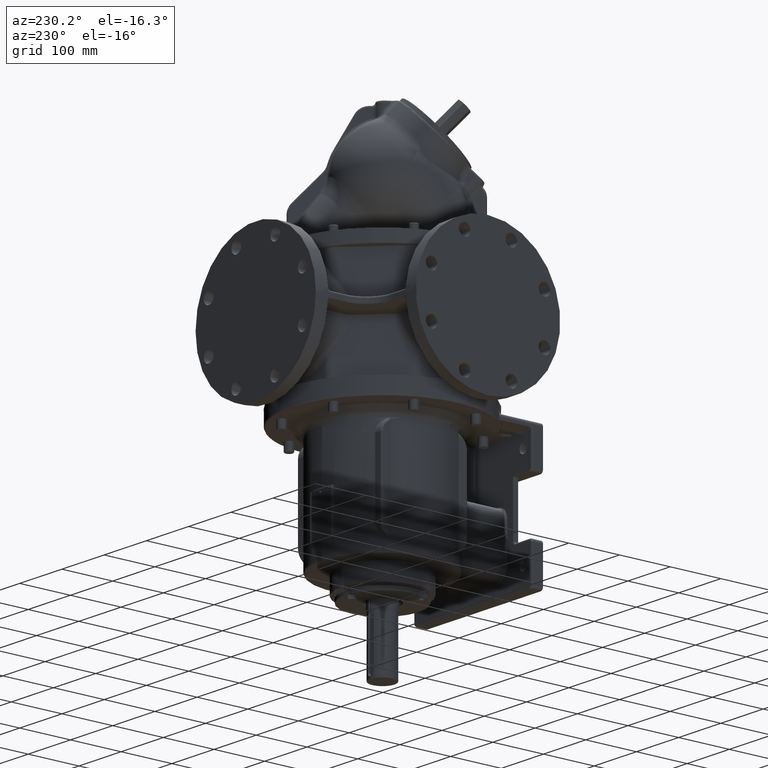
[diagram: clean part render]
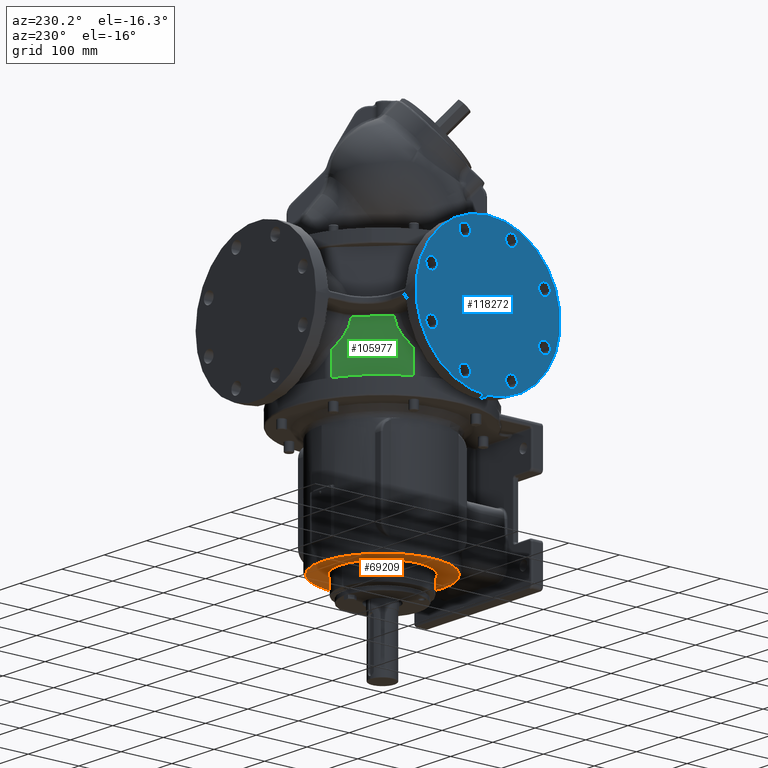
[diagram: same view with three faces highlighted in distinct colors, each labeled with its STEP entity id]
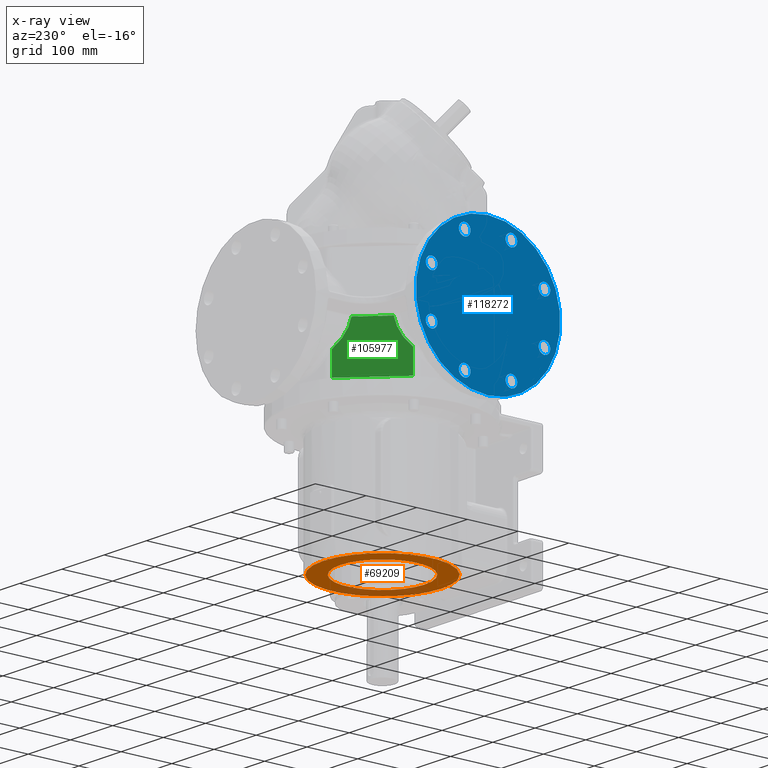
[diagram: x-ray of the same camera — body ghosted, the three highlighted faces saturated]
A machine part, auxiliary view with three faces highlighted in distinct colors.
The next image is the same camera in x-ray (body ghosted, the three faces saturated) — at least one of them is partly hidden behind the body in this view.
Their STEP definitions:

[orange] entity #69209 — the highlighted planar face has unit normal (0, 0, -1).
#10245=CARTESIAN_POINT('',(0.E0,1.E0,-2.52E2));
#10246=DIRECTION('',(0.E0,0.E0,-1.E0));
#10247=DIRECTION('',(0.E0,1.E0,0.E0));
#10248=AXIS2_PLACEMENT_3D('',#10245,#10246,#10247);
#10250=CARTESIAN_POINT('',(0.E0,1.E0,-2.52E2));
#10251=DIRECTION('',(0.E0,0.E0,1.E0));
#10252=DIRECTION('',(0.E0,1.E0,0.E0));
#10253=AXIS2_PLACEMENT_3D('',#10250,#10251,#10252);
#10255=CARTESIAN_POINT('',(0.E0,1.E0,-2.52E2));
#10256=DIRECTION('',(0.E0,0.E0,1.E0));
#10257=DIRECTION('',(0.E0,1.E0,0.E0));
#10258=AXIS2_PLACEMENT_3D('',#10255,#10256,#10257);
#10260=CARTESIAN_POINT('',(0.E0,1.E0,-2.52E2));
#10261=DIRECTION('',(0.E0,0.E0,1.E0));
#10262=DIRECTION('',(0.E0,-1.E0,0.E0));
#10263=AXIS2_PLACEMENT_3D('',#10260,#10261,#10262);
#41429=CARTESIAN_POINT('',(0.E0,1.18E2,-2.52E2));
#41431=VERTEX_POINT('',#41429);
#41433=CARTESIAN_POINT('',(3.763008000243E-14,-1.16E2,-2.52E2));
#41435=VERTEX_POINT('',#41433);
#41833=CARTESIAN_POINT('',(0.E0,8.4E1,-2.52E2));
#41834=CARTESIAN_POINT('',(-1.016455843292E-14,-8.2E1,-2.52E2));
#41835=VERTEX_POINT('',#41833);
#41836=VERTEX_POINT('',#41834);
#69194=CARTESIAN_POINT('',(0.E0,1.E0,-2.52E2));
#69195=DIRECTION('',(0.E0,0.E0,-1.E0));
#69196=DIRECTION('',(0.E0,1.E0,0.E0));
#69197=AXIS2_PLACEMENT_3D('',#69194,#69195,#69196);
#69198=PLANE('',#69197);
#69199=ORIENTED_EDGE('',*,*,#69187,.F.);
#69200=ORIENTED_EDGE('',*,*,#69176,.T.);
#69201=EDGE_LOOP('',(#69199,#69200));
#69202=FACE_OUTER_BOUND('',#69201,.F.);
#69204=ORIENTED_EDGE('',*,*,#69203,.F.);
#69206=ORIENTED_EDGE('',*,*,#69205,.F.);
#69207=EDGE_LOOP('',(#69204,#69206));
#69208=FACE_BOUND('',#69207,.F.);
#69209=ADVANCED_FACE('',(#69202,#69208),#69198,.T.);
#10249=CIRCLE('',#10248,1.17E2);
#10254=CIRCLE('',#10253,1.17E2);
#10259=CIRCLE('',#10258,8.3E1);
#10264=CIRCLE('',#10263,8.3E1);
#69176=EDGE_CURVE('',#41431,#41435,#10254,.T.);
#69187=EDGE_CURVE('',#41431,#41435,#10249,.T.);
#69203=EDGE_CURVE('',#41835,#41836,#10259,.T.);
#69205=EDGE_CURVE('',#41836,#41835,#10264,.T.);

[blue] entity #118272 — the highlighted planar face has unit normal (-1, 0, 0).
#20059=CARTESIAN_POINT('',(-2.5E2,1.E0,1.175E2));
#20060=DIRECTION('',(-1.E0,0.E0,0.E0));
#20061=DIRECTION('',(0.E0,0.E0,1.E0));
#20062=AXIS2_PLACEMENT_3D('',#20059,#20060,#20061);
#20277=CARTESIAN_POINT('',(-2.5E2,-4.511335359999E1,6.172516332390E0));
#20278=DIRECTION('',(-1.E0,0.E0,0.E0));
#20279=DIRECTION('',(0.E0,1.E0,0.E0));
#20280=AXIS2_PLACEMENT_3D('',#20277,#20278,#20279);
#20282=CARTESIAN_POINT('',(-2.5E2,-4.511335359999E1,6.172516332390E0));
#20283=DIRECTION('',(-1.E0,0.E0,0.E0));
#20284=DIRECTION('',(0.E0,-1.E0,0.E0));
#20285=AXIS2_PLACEMENT_3D('',#20282,#20283,#20284);
#20287=CARTESIAN_POINT('',(-2.5E2,-1.103274836676E2,7.138664640001E1));
#20288=DIRECTION('',(-1.E0,0.E0,0.E0));
#20289=DIRECTION('',(0.E0,7.071067811866E-1,-7.071067811865E-1));
#20290=AXIS2_PLACEMENT_3D('',#20287,#20288,#20289);
#20292=CARTESIAN_POINT('',(-2.5E2,-1.103274836676E2,7.138664640001E1));
#20293=DIRECTION('',(-1.E0,0.E0,0.E0));
#20294=DIRECTION('',(0.E0,-7.071067811865E-1,7.071067811865E-1));
#20295=AXIS2_PLACEMENT_3D('',#20292,#20293,#20294);
#20297=CARTESIAN_POINT('',(-2.5E2,-1.103274836676E2,1.636133536E2));
#20298=DIRECTION('',(-1.E0,0.E0,0.E0));
#20299=DIRECTION('',(0.E0,0.E0,-1.E0));
#20300=AXIS2_PLACEMENT_3D('',#20297,#20298,#20299);
#20302=CARTESIAN_POINT('',(-2.5E2,-1.103274836676E2,1.636133536E2));
#20303=DIRECTION('',(-1.E0,0.E0,0.E0));
#20304=DIRECTION('',(0.E0,0.E0,1.E0));
#20305=AXIS2_PLACEMENT_3D('',#20302,#20303,#20304);
#20307=CARTESIAN_POINT('',(-2.5E2,-4.511335359999E1,2.288274836676E2));
#20308=DIRECTION('',(-1.E0,0.E0,0.E0));
#20309=DIRECTION('',(0.E0,-7.071067811865E-1,-7.071067811866E-1));
#20310=AXIS2_PLACEMENT_3D('',#20307,#20308,#20309);
#20312=CARTESIAN_POINT('',(-2.5E2,-4.511335359999E1,2.288274836676E2));
#20313=DIRECTION('',(-1.E0,0.E0,0.E0));
#20314=DIRECTION('',(0.E0,7.071067811865E-1,7.071067811865E-1));
#20315=AXIS2_PLACEMENT_3D('',#20312,#20313,#20314);
#20317=CARTESIAN_POINT('',(-2.5E2,4.711335359999E1,2.288274836676E2));
#20318=DIRECTION('',(-1.E0,0.E0,0.E0));
#20319=DIRECTION('',(0.E0,-1.E0,0.E0));
#20320=AXIS2_PLACEMENT_3D('',#20317,#20318,#20319);
#20322=CARTESIAN_POINT('',(-2.5E2,4.711335359999E1,2.288274836676E2));
#20323=DIRECTION('',(-1.E0,0.E0,0.E0));
#20324=DIRECTION('',(0.E0,1.E0,0.E0));
#20325=AXIS2_PLACEMENT_3D('',#20322,#20323,#20324);
#20327=CARTESIAN_POINT('',(-2.5E2,1.123274836676E2,1.636133536E2));
#20328=DIRECTION('',(-1.E0,0.E0,0.E0));
#20329=DIRECTION('',(0.E0,-7.071067811866E-1,7.071067811865E-1));
#20330=AXIS2_PLACEMENT_3D('',#20327,#20328,#20329);
#20332=CARTESIAN_POINT('',(-2.5E2,1.123274836676E2,1.636133536E2));
#20333=DIRECTION('',(-1.E0,0.E0,0.E0));
#20334=DIRECTION('',(0.E0,7.071067811865E-1,-7.071067811865E-1));
#20335=AXIS2_PLACEMENT_3D('',#20332,#20333,#20334);
#20337=CARTESIAN_POINT('',(-2.5E2,1.123274836676E2,7.138664640001E1));
#20338=DIRECTION('',(-1.E0,0.E0,0.E0));
#20339=DIRECTION('',(0.E0,0.E0,1.E0));
#20340=AXIS2_PLACEMENT_3D('',#20337,#20338,#20339);
#20342=CARTESIAN_POINT('',(-2.5E2,1.123274836676E2,7.138664640001E1));
#20343=DIRECTION('',(-1.E0,0.E0,0.E0));
#20344=DIRECTION('',(0.E0,0.E0,-1.E0));
#20345=AXIS2_PLACEMENT_3D('',#20342,#20343,#20344);
#20347=CARTESIAN_POINT('',(-2.5E2,4.711335359999E1,6.172516332390E0));
#20348=DIRECTION('',(-1.E0,0.E0,0.E0));
#20349=DIRECTION('',(0.E0,7.071067811866E-1,7.071067811865E-1));
#20350=AXIS2_PLACEMENT_3D('',#20347,#20348,#20349);
#20352=CARTESIAN_POINT('',(-2.5E2,4.711335359999E1,6.172516332390E0));
#20353=DIRECTION('',(-1.E0,0.E0,0.E0));
#20354=DIRECTION('',(0.E0,-7.071067811865E-1,-7.071067811865E-1));
#20355=AXIS2_PLACEMENT_3D('',#20352,#20353,#20354);
#20357=CARTESIAN_POINT('',(-2.5E2,1.E0,1.175E2));
#20358=DIRECTION('',(-1.E0,0.E0,0.E0));
#20359=DIRECTION('',(0.E0,0.E0,-1.E0));
#20360=AXIS2_PLACEMENT_3D('',#20357,#20358,#20359);
#42069=CARTESIAN_POINT('',(-2.5E2,1.E0,-2.5E1));
#42070=CARTESIAN_POINT('',(-2.5E2,9.999999999998E-1,2.6E2));
#42071=VERTEX_POINT('',#42069);
#42072=VERTEX_POINT('',#42070);
#42077=CARTESIAN_POINT('',(-2.5E2,-3.361335359999E1,6.172516332390E0));
#42078=CARTESIAN_POINT('',(-2.5E2,-5.661335359999E1,6.172516332390E0));
#42079=VERTEX_POINT('',#42077);
#42080=VERTEX_POINT('',#42078);
#42081=CARTESIAN_POINT('',(-2.5E2,-1.021957556840E2,6.325491841636E1));
#42082=CARTESIAN_POINT('',(-2.5E2,-1.184592116513E2,7.951837438365E1));
#42083=VERTEX_POINT('',#42081);
#42084=VERTEX_POINT('',#42082);
#42085=CARTESIAN_POINT('',(-2.5E2,-1.103274836676E2,1.521133536E2));
#42086=CARTESIAN_POINT('',(-2.5E2,-1.103274836676E2,1.751133536E2));
#42087=VERTEX_POINT('',#42085);
#42088=VERTEX_POINT('',#42086);
#42089=CARTESIAN_POINT('',(-2.5E2,-5.324508158364E1,2.206957556840E2));
#42090=CARTESIAN_POINT('',(-2.5E2,-3.698162561635E1,2.369592116513E2));
#42091=VERTEX_POINT('',#42089);
#42092=VERTEX_POINT('',#42090);
#42332=CARTESIAN_POINT('',(-2.5E2,3.561335359999E1,2.288274836676E2));
#42333=CARTESIAN_POINT('',(-2.5E2,5.861335359999E1,2.288274836676E2));
#42334=VERTEX_POINT('',#42332);
#42335=VERTEX_POINT('',#42333);
#42340=CARTESIAN_POINT('',(-2.5E2,1.041957556840E2,1.717450815836E2));
#42341=CARTESIAN_POINT('',(-2.5E2,1.204592116513E2,1.554816256163E2));
#42342=VERTEX_POINT('',#42340);
#42343=VERTEX_POINT('',#42341);
#42348=CARTESIAN_POINT('',(-2.5E2,1.123274836676E2,8.288664640001E1));
#42349=CARTESIAN_POINT('',(-2.5E2,1.123274836676E2,5.988664640001E1));
#42350=VERTEX_POINT('',#42348);
#42351=VERTEX_POINT('',#42349);
#42356=CARTESIAN_POINT('',(-2.5E2,5.524508158364E1,1.430424431604E1));
#42357=CARTESIAN_POINT('',(-2.5E2,3.898162561635E1,-1.959211651255E0));
#42358=VERTEX_POINT('',#42356);
#42359=VERTEX_POINT('',#42357);
#118214=CARTESIAN_POINT('',(-2.5E2,1.E0,1.175E2));
#118215=DIRECTION('',(-1.E0,0.E0,0.E0));
#118216=DIRECTION('',(0.E0,1.E0,0.E0));
#118217=AXIS2_PLACEMENT_3D('',#118214,#118215,#118216);
#118218=PLANE('',#118217);
#118220=ORIENTED_EDGE('',*,*,#118219,.F.);
#118221=ORIENTED_EDGE('',*,*,#118190,.F.);
#118222=EDGE_LOOP('',(#118220,#118221));
#118223=FACE_OUTER_BOUND('',#118222,.F.);
#118225=ORIENTED_EDGE('',*,*,#118224,.T.);
#118227=ORIENTED_EDGE('',*,*,#118226,.T.);
#118228=EDGE_LOOP('',(#118225,#118227));
#118229=FACE_BOUND('',#118228,.F.);
#118231=ORIENTED_EDGE('',*,*,#118230,.T.);
#118233=ORIENTED_EDGE('',*,*,#118232,.T.);
#118234=EDGE_LOOP('',(#118231,#118233));
#118235=FACE_BOUND('',#118234,.F.);
#118237=ORIENTED_EDGE('',*,*,#118236,.T.);
#118239=ORIENTED_EDGE('',*,*,#118238,.T.);
#118240=EDGE_LOOP('',(#118237,#118239));
#118241=FACE_BOUND('',#118240,.F.);
#118243=ORIENTED_EDGE('',*,*,#118242,.T.);
#118245=ORIENTED_EDGE('',*,*,#118244,.T.);
#118246=EDGE_LOOP('',(#118243,#118245));
#118247=FACE_BOUND('',#118246,.F.);
#118249=ORIENTED_EDGE('',*,*,#118248,.T.);
#118251=ORIENTED_EDGE('',*,*,#118250,.T.);
#118252=EDGE_LOOP('',(#118249,#118251));
#118253=FACE_BOUND('',#118252,.F.);
#118255=ORIENTED_EDGE('',*,*,#118254,.T.);
#118257=ORIENTED_EDGE('',*,*,#118256,.T.);
#118258=EDGE_LOOP('',(#118255,#118257));
#118259=FACE_BOUND('',#118258,.F.);
#118261=ORIENTED_EDGE('',*,*,#118260,.T.);
#118263=ORIENTED_EDGE('',*,*,#118262,.T.);
#118264=EDGE_LOOP('',(#118261,#118263));
#118265=FACE_BOUND('',#118264,.F.);
#118267=ORIENTED_EDGE('',*,*,#118266,.T.);
#118269=ORIENTED_EDGE('',*,*,#118268,.T.);
#118270=EDGE_LOOP('',(#118267,#118269));
#118271=FACE_BOUND('',#118270,.F.);
#118272=ADVANCED_FACE('',(#118223,#118229,#118235,#118241,#118247,#118253,
#118259,#118265,#118271),#118218,.T.);
#20063=CIRCLE('',#20062,1.425E2);
#20281=CIRCLE('',#20280,1.15E1);
#20286=CIRCLE('',#20285,1.15E1);
#20291=CIRCLE('',#20290,1.15E1);
#20296=CIRCLE('',#20295,1.15E1);
#20301=CIRCLE('',#20300,1.15E1);
#20306=CIRCLE('',#20305,1.15E1);
#20311=CIRCLE('',#20310,1.15E1);
#20316=CIRCLE('',#20315,1.15E1);
#20321=CIRCLE('',#20320,1.15E1);
#20326=CIRCLE('',#20325,1.15E1);
#20331=CIRCLE('',#20330,1.15E1);
#20336=CIRCLE('',#20335,1.15E1);
#20341=CIRCLE('',#20340,1.15E1);
#20346=CIRCLE('',#20345,1.15E1);
#20351=CIRCLE('',#20350,1.15E1);
#20356=CIRCLE('',#20355,1.15E1);
#20361=CIRCLE('',#20360,1.425E2);
#118190=EDGE_CURVE('',#42072,#42071,#20063,.T.);
#118219=EDGE_CURVE('',#42071,#42072,#20361,.T.);
#118224=EDGE_CURVE('',#42079,#42080,#20281,.T.);
#118226=EDGE_CURVE('',#42080,#42079,#20286,.T.);
#118230=EDGE_CURVE('',#42083,#42084,#20291,.T.);
#118232=EDGE_CURVE('',#42084,#42083,#20296,.T.);
#118236=EDGE_CURVE('',#42087,#42088,#20301,.T.);
#118238=EDGE_CURVE('',#42088,#42087,#20306,.T.);
#118242=EDGE_CURVE('',#42091,#42092,#20311,.T.);
#118244=EDGE_CURVE('',#42092,#42091,#20316,.T.);
#118248=EDGE_CURVE('',#42334,#42335,#20321,.T.);
#118250=EDGE_CURVE('',#42335,#42334,#20326,.T.);
#118254=EDGE_CURVE('',#42342,#42343,#20331,.T.);
#118256=EDGE_CURVE('',#42343,#42342,#20336,.T.);
#118260=EDGE_CURVE('',#42350,#42351,#20341,.T.);
#118262=EDGE_CURVE('',#42351,#42350,#20346,.T.);
#118266=EDGE_CURVE('',#42358,#42359,#20351,.T.);
#118268=EDGE_CURVE('',#42359,#42358,#20356,.T.);

[green] entity #105977 — the highlighted planar face has unit normal (-0.7071, 0.7071, 0).
#18035=CARTESIAN_POINT('',(-1.603137084990E2,7.403152929258E1,
5.830536810069E1));
#18070=CARTESIAN_POINT('',(-1.394130866161E2,9.493215117490E1,
1.084999999836E2));
#18110=DIRECTION('',(-7.071067811865E-1,-7.071067811865E-1,0.E0));
#18111=VECTOR('',#18110,6.431975573031E1);
#18112=CARTESIAN_POINT('',(-9.393215117490E1,1.404130866161E2,
1.084999999836E2));
#18113=LINE('',#18112,#18111);
#18114=CARTESIAN_POINT('',(-1.394130866161E2,9.493215117490E1,
1.084999999836E2));
#18115=CARTESIAN_POINT('',(-1.394706443185E2,9.487459347641E1,
1.080040716554E2));
#18116=CARTESIAN_POINT('',(-1.395932243751E2,9.475201341493E1,
1.070126960584E2));
#18117=CARTESIAN_POINT('',(-1.397995885254E2,9.454564926655E1,
1.055270858532E2));
#18118=CARTESIAN_POINT('',(-1.400285551612E2,9.431668263022E1,
1.040429935544E2));
#18119=CARTESIAN_POINT('',(-1.402802620863E2,9.406497570526E1,
1.025603988390E2));
#18120=CARTESIAN_POINT('',(-1.405548550863E2,9.379038270529E1,
1.010793422154E2));
#18121=CARTESIAN_POINT('',(-1.408525116765E2,9.349272611502E1,
9.959979052187E1));
#18122=CARTESIAN_POINT('',(-1.411734198631E2,9.317181792848E1,
9.812175732255E1));
#18123=CARTESIAN_POINT('',(-1.415177983144E2,9.282743947717E1,
9.664520700896E1));
#18124=CARTESIAN_POINT('',(-1.418858902173E2,9.245934757424E1,
9.517009368939E1));
#18125=CARTESIAN_POINT('',(-1.422779510842E2,9.206728670733E1,
9.369641283483E1));
#18126=CARTESIAN_POINT('',(-1.426942754254E2,9.165096236615E1,
9.222410020712E1));
#18127=CARTESIAN_POINT('',(-1.431351615063E2,9.121007628523E1,
9.075316358346E1));
#18128=CARTESIAN_POINT('',(-1.436009984052E2,9.074423938631E1,
8.928339723527E1));
#18129=CARTESIAN_POINT('',(-1.440921519569E2,9.025308583469E1,
8.781477070894E1));
#18130=CARTESIAN_POINT('',(-1.446090391523E2,8.973619863922E1,
8.634718387881E1));
#18131=CARTESIAN_POINT('',(-1.451520957660E2,8.919314202555E1,
8.488057261133E1));
#18132=CARTESIAN_POINT('',(-1.457218423835E2,8.862339540808E1,
8.341473510560E1));
#18133=CARTESIAN_POINT('',(-1.463187967153E2,8.802644107622E1,
8.194957682028E1));
#18134=CARTESIAN_POINT('',(-1.469435684564E2,8.740166933514E1,
8.048487068449E1));
#18135=CARTESIAN_POINT('',(-1.475967805327E2,8.674845725886E1,
7.902046365068E1));
#18136=CARTESIAN_POINT('',(-1.482791597954E2,8.606607799620E1,
7.755607029291E1));
#18137=CARTESIAN_POINT('',(-1.489914602101E2,8.535377758144E1,
7.609146136753E1));
#18138=CARTESIAN_POINT('',(-1.497345465996E2,8.461069119196E1,
7.462628951907E1));
#18139=CARTESIAN_POINT('',(-1.505093456480E2,8.383589214360E1,
7.316021116336E1));
#18140=CARTESIAN_POINT('',(-1.513169084301E2,8.302832936148E1,
7.169277215292E1));
#18141=CARTESIAN_POINT('',(-1.521583728907E2,8.218686490084E1,
7.022350251554E1));
#18142=CARTESIAN_POINT('',(-1.530349929227E2,8.131024486884E1,
6.875186933294E1));
#18143=CARTESIAN_POINT('',(-1.539482494282E2,8.039698836332E1,
6.727711965079E1));
#18144=CARTESIAN_POINT('',(-1.548997644393E2,7.944547335225E1,
6.579844953676E1));
#18145=CARTESIAN_POINT('',(-1.558913357240E2,7.845390206757E1,
6.431497122245E1));
#18146=CARTESIAN_POINT('',(-1.569250317093E2,7.742020608233E1,
6.282559084964E1));
#18147=CARTESIAN_POINT('',(-1.580033068163E2,7.634193097517E1,
6.132890561877E1));
#18148=CARTESIAN_POINT('',(-1.591286287775E2,7.521660901452E1,
5.982370812174E1));
#18149=CARTESIAN_POINT('',(-1.599130170010E2,7.443222078961E1,
5.881246306592E1));
#18150=CARTESIAN_POINT('',(-1.603137084990E2,7.403152929258E1,
5.830536810069E1));
#18152=DIRECTION('',(0.E0,0.E0,1.E0));
#18153=VECTOR('',#18152,4.580536810069E1);
#18154=CARTESIAN_POINT('',(-1.603137084990E2,7.403152929258E1,1.25E1));
#18155=LINE('',#18154,#18153);
#18156=DIRECTION('',(7.071067811865E-1,7.071067811865E-1,0.E0));
#18157=VECTOR('',#18156,1.234356415872E2);
#18158=CARTESIAN_POINT('',(-1.603137084990E2,7.403152929258E1,1.25E1));
#18159=LINE('',#18158,#18157);
#18160=DIRECTION('',(7.769137953037E-12,7.770378930268E-12,1.E0));
#18161=VECTOR('',#18160,4.580536810252E1);
#18162=CARTESIAN_POINT('',(-7.303152929258E1,1.613137084990E2,1.25E1));
#18163=LINE('',#18162,#18161);
#18164=CARTESIAN_POINT('',(-9.393215117490E1,1.404130866161E2,
1.084999999836E2));
#18165=CARTESIAN_POINT('',(-9.387461174659E1,1.404706260483E2,
1.080042290749E2));
#18166=CARTESIAN_POINT('',(-9.375206393862E1,1.405931738514E2,
1.070130830997E2));
#18167=CARTESIAN_POINT('',(-9.354568995374E1,1.407995478382E2,
1.055273608618E2));
#18168=CARTESIAN_POINT('',(-9.331673456756E1,1.410285032239E2,
1.040433156827E2));
#18169=CARTESIAN_POINT('',(-9.306502994844E1,1.412802078432E2,
1.025607034566E2));
#18170=CARTESIAN_POINT('',(-9.279044049477E1,1.415547972968E2,
1.010796413130E2));
#18171=CARTESIAN_POINT('',(-9.249278823399E1,1.418524495576E2,
9.960008746984E1));
#18172=CARTESIAN_POINT('',(-9.217188352781E1,1.421733542637E2,
9.812204846784E1));
#18173=CARTESIAN_POINT('',(-9.182750773282E1,1.425177300587E2,
9.664548981928E1));
#18174=CARTESIAN_POINT('',(-9.145942069726E1,1.428858170943E2,
9.517037711521E1));
#18175=CARTESIAN_POINT('',(-9.106735964955E1,1.432778781420E2,
9.369667870682E1));
#18176=CARTESIAN_POINT('',(-9.065104284334E1,1.436941949482E2,
9.222437635881E1));
#18177=CARTESIAN_POINT('',(-9.021015266061E1,1.441350851310E2,
9.075341107783E1));
#18178=CARTESIAN_POINT('',(-8.974432201944E1,1.446009157721E2,
8.928365092559E1));
#18179=CARTESIAN_POINT('',(-8.925316674052E1,1.450920710510E2,
8.781500626821E1));
#18180=CARTESIAN_POINT('',(-8.873628456657E1,1.456089532250E2,
8.634742158672E1));
#18181=CARTESIAN_POINT('',(-8.819322330767E1,1.461520144839E2,
8.488078668011E1));
#18182=CARTESIAN_POINT('',(-8.762348190700E1,1.467217558846E2,
8.341495227923E1));
#18183=CARTESIAN_POINT('',(-8.702652168967E1,1.473187161019E2,
8.194976998973E1));
#18184=CARTESIAN_POINT('',(-8.640175387305E1,1.479434839185E2,
8.048506429418E1));
#18185=CARTESIAN_POINT('',(-8.574853412135E1,1.485967036702E2,
7.902063201396E1));
#18186=CARTESIAN_POINT('',(-8.506615690406E1,1.492790808875E2,
7.755623585390E1));
#18187=CARTESIAN_POINT('',(-8.435384760587E1,1.499913901857E2,
7.609160210908E1));
#18188=CARTESIAN_POINT('',(-8.361076027517E1,1.507344775164E2,
7.462642276208E1));
#18189=CARTESIAN_POINT('',(-8.283595101474E1,1.515092867768E2,
7.316032000416E1));
#18190=CARTESIAN_POINT('',(-8.202838176152E1,1.523168560300E2,
7.169286532515E1));
#18191=CARTESIAN_POINT('',(-8.118690957121E1,1.531583282204E2,
7.022357865215E1));
#18192=CARTESIAN_POINT('',(-8.031027371344E1,1.540349640781E2,
6.875191653883E1));
#18193=CARTESIAN_POINT('',(-7.939700774033E1,1.549482300512E2,
6.727715005032E1));
#18194=CARTESIAN_POINT('',(-7.844547409030E1,1.558997637013E2,
6.579845034276E1));
#18195=CARTESIAN_POINT('',(-7.745388503057E1,1.568913527610E2,
6.431494566671E1));
#18196=CARTESIAN_POINT('',(-7.642016113675E1,1.579250766548E2,
6.282552734188E1));
#18197=CARTESIAN_POINT('',(-7.534188251240E1,1.590033552790E2,
6.132883840679E1));
#18198=CARTESIAN_POINT('',(-7.421646077745E1,1.601287770145E2,
5.982351323787E1));
#18199=CARTESIAN_POINT('',(-7.343215701991E1,1.609130807707E2,
5.881238236447E1));
#18200=CARTESIAN_POINT('',(-7.303152929222E1,1.613137084993E2,
5.830536810252E1));
#18202=CARTESIAN_POINT('',(-7.303152929222E1,1.613137084993E2,
5.830536810252E1));
#42160=CARTESIAN_POINT('',(-7.303152929258E1,1.613137084990E2,1.25E1));
#42162=VERTEX_POINT('',#42160);
#42190=CARTESIAN_POINT('',(-1.603137084990E2,7.403152929258E1,1.25E1));
#42191=VERTEX_POINT('',#42190);
#42256=VERTEX_POINT('',#18035);
#42324=VERTEX_POINT('',#18202);
#42437=VERTEX_POINT('',#18070);
#42439=CARTESIAN_POINT('',(-9.393215117490E1,1.404130866161E2,
1.084999999836E2));
#42440=VERTEX_POINT('',#42439);
#105962=CARTESIAN_POINT('',(-1.65E2,6.934523779156E1,2.255E2));
#105963=DIRECTION('',(-7.071067811865E-1,7.071067811865E-1,0.E0));
#105964=DIRECTION('',(7.071067811865E-1,7.071067811865E-1,0.E0));
#105965=AXIS2_PLACEMENT_3D('',#105962,#105963,#105964);
#105966=PLANE('',#105965);
#105967=ORIENTED_EDGE('',*,*,#105952,.T.);
#105968=ORIENTED_EDGE('',*,*,#105815,.T.);
#105969=ORIENTED_EDGE('',*,*,#104993,.F.);
#105970=ORIENTED_EDGE('',*,*,#76111,.T.);
#105972=ORIENTED_EDGE('',*,*,#105971,.T.);
#105974=ORIENTED_EDGE('',*,*,#105973,.F.);
#105975=EDGE_LOOP('',(#105967,#105968,#105969,#105970,#105972,#105974));
#105976=FACE_OUTER_BOUND('',#105975,.F.);
#105977=ADVANCED_FACE('',(#105976),#105966,.T.);
#18151=B_SPLINE_CURVE_WITH_KNOTS('',3,(#18114,#18115,#18116,#18117,#18118,
#18119,#18120,#18121,#18122,#18123,#18124,#18125,#18126,#18127,#18128,#18129,
#18130,#18131,#18132,#18133,#18134,#18135,#18136,#18137,#18138,#18139,#18140,
#18141,#18142,#18143,#18144,#18145,#18146,#18147,#18148,#18149,#18150),
.UNSPECIFIED.,.F.,.F.,(4,1,1,1,1,1,1,1,1,1,1,1,1,1,1,1,1,1,1,1,1,1,1,1,1,1,1,1,
1,1,1,1,1,1,4),(0.E0,2.941176470588E-2,5.882352941176E-2,8.823529411765E-2,
1.176470588235E-1,1.470588235294E-1,1.764705882353E-1,2.058823529412E-1,
2.352941176471E-1,2.647058823529E-1,2.941176470588E-1,3.235294117647E-1,
3.529411764706E-1,3.823529411765E-1,4.117647058824E-1,4.411764705882E-1,
4.705882352941E-1,5.E-1,5.294117647059E-1,5.588235294118E-1,5.882352941176E-1,
6.176470588235E-1,6.470588235294E-1,6.764705882353E-1,7.058823529412E-1,
7.352941176471E-1,7.647058823529E-1,7.941176470588E-1,8.235294117647E-1,
8.529411764706E-1,8.823529411765E-1,9.117647058824E-1,9.411764705882E-1,
9.705882352941E-1,1.E0),.UNSPECIFIED.);
#18201=B_SPLINE_CURVE_WITH_KNOTS('',3,(#18164,#18165,#18166,#18167,#18168,
#18169,#18170,#18171,#18172,#18173,#18174,#18175,#18176,#18177,#18178,#18179,
#18180,#18181,#18182,#18183,#18184,#18185,#18186,#18187,#18188,#18189,#18190,
#18191,#18192,#18193,#18194,#18195,#18196,#18197,#18198,#18199,#18200),
.UNSPECIFIED.,.F.,.F.,(4,1,1,1,1,1,1,1,1,1,1,1,1,1,1,1,1,1,1,1,1,1,1,1,1,1,1,1,
1,1,1,1,1,1,4),(0.E0,2.941176470588E-2,5.882352941176E-2,8.823529411765E-2,
1.176470588235E-1,1.470588235294E-1,1.764705882353E-1,2.058823529412E-1,
2.352941176471E-1,2.647058823529E-1,2.941176470588E-1,3.235294117647E-1,
3.529411764706E-1,3.823529411765E-1,4.117647058824E-1,4.411764705882E-1,
4.705882352941E-1,5.E-1,5.294117647059E-1,5.588235294118E-1,5.882352941176E-1,
6.176470588235E-1,6.470588235294E-1,6.764705882353E-1,7.058823529412E-1,
7.352941176471E-1,7.647058823529E-1,7.941176470588E-1,8.235294117647E-1,
8.529411764706E-1,8.823529411765E-1,9.117647058824E-1,9.411764705882E-1,
9.705882352941E-1,1.E0),.UNSPECIFIED.);
#76111=EDGE_CURVE('',#42191,#42162,#18159,.T.);
#104993=EDGE_CURVE('',#42191,#42256,#18155,.T.);
#105815=EDGE_CURVE('',#42437,#42256,#18151,.T.);
#105952=EDGE_CURVE('',#42440,#42437,#18113,.T.);
#105971=EDGE_CURVE('',#42162,#42324,#18163,.T.);
#105973=EDGE_CURVE('',#42440,#42324,#18201,.T.);